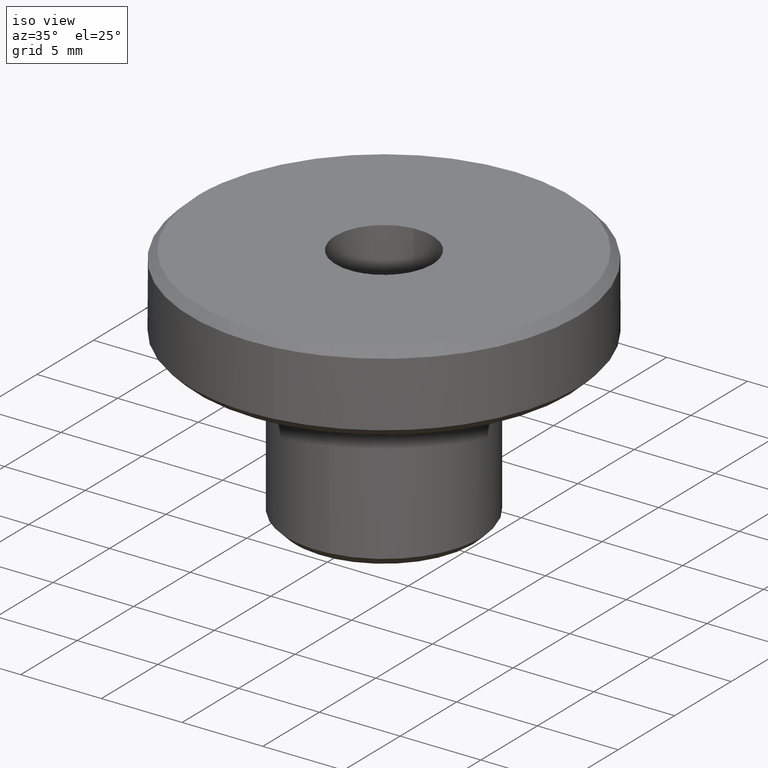
[diagram: clean part render]
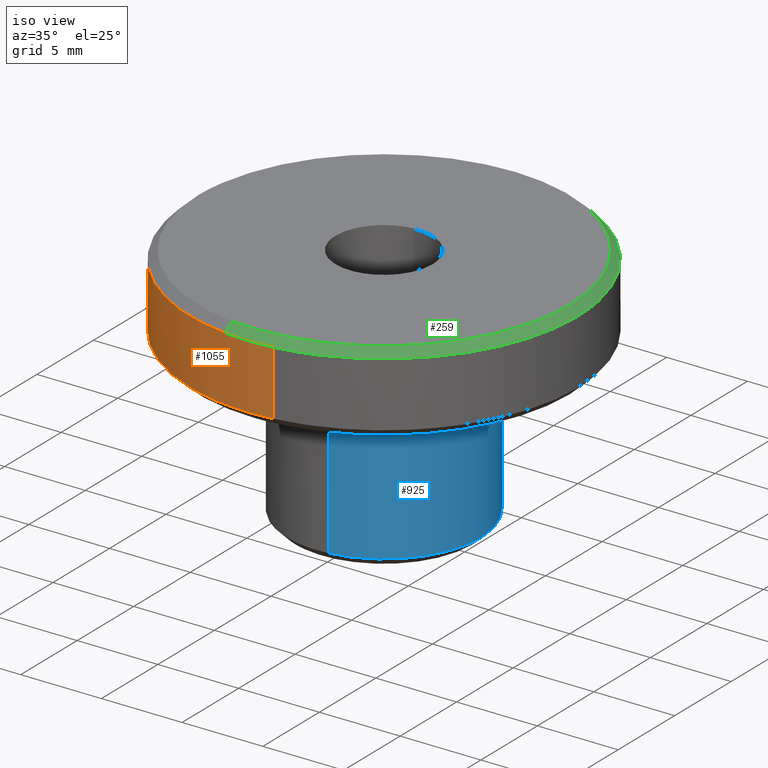
[diagram: same view with three faces highlighted in distinct colors, each labeled with its STEP entity id]
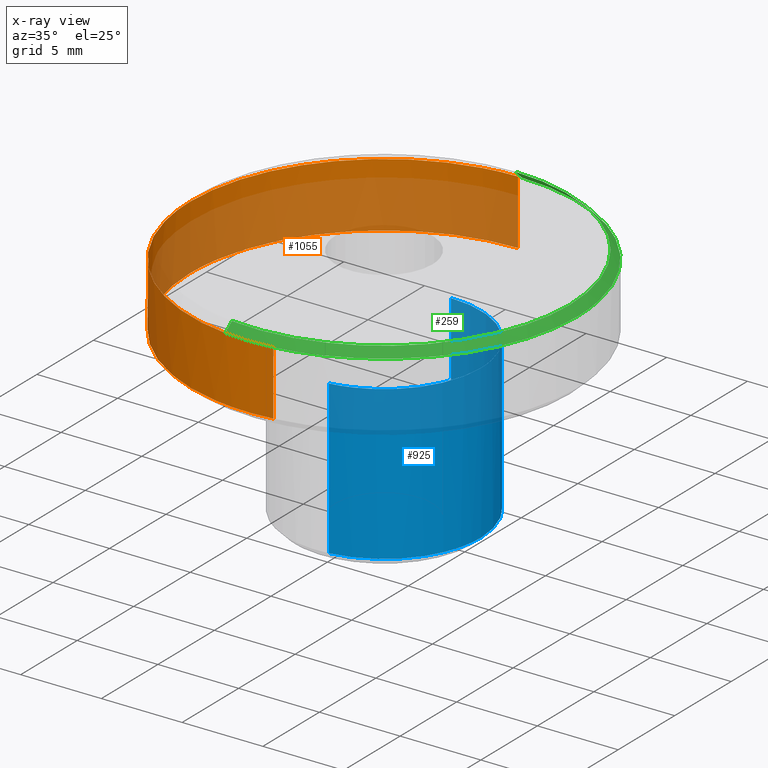
[diagram: x-ray of the same camera — body ghosted, the three highlighted faces saturated]
A machine part, iso view with three faces highlighted in distinct colors.
The next image is the same camera in x-ray (body ghosted, the three faces saturated) — at least one of them is partly hidden behind the body in this view.
Their STEP definitions:

[orange] entity #1055 — the highlighted face is a freeform B-spline surface patch.
#62=CARTESIAN_POINT('',(-1.489536024977577,-11.907194565906501,14.499999999997531));
#63=VERTEX_POINT('',#62);
#64=CARTESIAN_POINT('',(-12.0,0.0,14.500000000000000));
#65=VERTEX_POINT('',#64);
#66=CARTESIAN_POINT('',(-1.489536024977576,-11.907194565906503,14.499999999997526));
#67=CARTESIAN_POINT('',(-12.000000000000002,-10.592383201768106,14.500000000000009));
#68=CARTESIAN_POINT('',(-12.0,0.0,14.500000000000000));
#76=(BOUNDED_CURVE()B_SPLINE_CURVE(2,(#66,#67,#68),.UNSPECIFIED.,.F.,.U.)B_SPLINE_CURVE_WITH_KNOTS((3,3),(0.771473928971248,1.0),.UNSPECIFIED.)CURVE()GEOMETRIC_REPRESENTATION_ITEM()RATIONAL_B_SPLINE_CURVE((0.954005430273657,0.732265053894389,1.0))REPRESENTATION_ITEM(''));
#77=EDGE_CURVE('',#63,#65,#76,.T.);
#125=CARTESIAN_POINT('',(-0.104710458545633,11.999543146295510,14.500000000000030));
#126=VERTEX_POINT('',#125);
#142=CARTESIAN_POINT('',(-12.0,0.0,14.500000000000000));
#143=CARTESIAN_POINT('',(-12.0,11.895742425951299,14.499999999999996));
#144=CARTESIAN_POINT('',(-0.104710458545633,11.999543146295510,14.500000000000037));
#152=(BOUNDED_CURVE()B_SPLINE_CURVE(2,(#142,#143,#144),.UNSPECIFIED.,.F.,.U.)B_SPLINE_CURVE_WITH_KNOTS((3,3),(0.0,0.248460222619991),.UNSPECIFIED.)CURVE()GEOMETRIC_REPRESENTATION_ITEM()RATIONAL_B_SPLINE_CURVE((1.0,0.708910742598895,0.996414298767122))REPRESENTATION_ITEM(''));
#153=EDGE_CURVE('',#65,#126,#152,.T.);
#180=CARTESIAN_POINT('',(1.489536029010390,-11.907194565399520,14.500000000000000));
#181=VERTEX_POINT('',#180);
#182=CARTESIAN_POINT('',(1.489536029010390,-11.907194565399525,14.499999999999998));
#183=CARTESIAN_POINT('',(0.747659134501809,-11.999999999999996,14.500000000000007));
#184=CARTESIAN_POINT('',(0.0,-12.0,14.500000000000000));
#185=CARTESIAN_POINT('',(-0.747659130421445,-11.999999999999996,14.499999999999998));
#186=CARTESIAN_POINT('',(-1.489536024977577,-11.907194565906501,14.499999999997529));
#194=(BOUNDED_CURVE()B_SPLINE_CURVE(2,(#182,#183,#184,#185,#186),.UNSPECIFIED.,.F.,.U.)B_SPLINE_CURVE_WITH_KNOTS((3,2,3),(0.728526070914507,0.750000000000000,0.771473928971248),.UNSPECIFIED.)CURVE()GEOMETRIC_REPRESENTATION_ITEM()RATIONAL_B_SPLINE_CURVE((0.954005430051951,0.974841727158312,1.0,0.974841727292159,0.954005430273658))REPRESENTATION_ITEM(''));
#195=EDGE_CURVE('',#181,#63,#194,.T.);
#337=CARTESIAN_POINT('',(0.104718425980843,-11.999543076770090,10.500000000000060));
#338=VERTEX_POINT('',#337);
#344=CARTESIAN_POINT('',(-12.0,0.0,10.500000000000000));
#345=VERTEX_POINT('',#344);
#346=CARTESIAN_POINT('',(-12.0,0.0,10.500000000000000));
#347=CARTESIAN_POINT('',(-12.0,-12.0,10.500000000000002));
#348=CARTESIAN_POINT('',(0.0,-12.0,10.500000000000000));
#349=CARTESIAN_POINT('',(0.052360209848779,-12.000000000000004,10.500000000000002));
#350=CARTESIAN_POINT('',(0.104718425980843,-11.999543076770081,10.500000000000066));
#358=(BOUNDED_CURVE()B_SPLINE_CURVE(2,(#346,#347,#348,#349,#350),.UNSPECIFIED.,.F.,.U.)B_SPLINE_CURVE_WITH_KNOTS((3,2,3),(0.0,0.250000000000000,0.251539894334998),.UNSPECIFIED.)CURVE()GEOMETRIC_REPRESENTATION_ITEM()RATIONAL_B_SPLINE_CURVE((1.0,0.707106781186548,1.0,0.998195901566360,0.996414028100381))REPRESENTATION_ITEM(''));
#359=EDGE_CURVE('',#345,#338,#358,.T.);
#361=CARTESIAN_POINT('',(-0.104709888522540,11.999543151269251,10.500000000000000));
#362=VERTEX_POINT('',#361);
#363=CARTESIAN_POINT('',(-0.104709888522540,11.999543151269243,10.500000000000002));
#364=CARTESIAN_POINT('',(-12.000000000000002,11.895742991064994,10.500000000000002));
#365=CARTESIAN_POINT('',(-12.0,0.0,10.500000000000000));
#373=(BOUNDED_CURVE()B_SPLINE_CURVE(2,(#363,#364,#365),.UNSPECIFIED.,.F.,.U.)B_SPLINE_CURVE_WITH_KNOTS((3,3),(0.751539769012567,1.0),.UNSPECIFIED.)CURVE()GEOMETRIC_REPRESENTATION_ITEM()RATIONAL_B_SPLINE_CURVE((0.996414318131745,0.708910732795827,1.0))REPRESENTATION_ITEM(''));
#374=EDGE_CURVE('',#362,#345,#373,.T.);
#444=CARTESIAN_POINT('',(1.489527852717329,-11.907195588211000,10.500000000000000));
#445=VERTEX_POINT('',#444);
#459=CARTESIAN_POINT('',(0.104718425980843,-11.999543076770088,10.500000000000062));
#460=CARTESIAN_POINT('',(0.799797775870970,-11.993477211179432,10.499999999999998));
#461=CARTESIAN_POINT('',(1.489527852717330,-11.907195588211003,10.500000000000000));
#469=(BOUNDED_CURVE()B_SPLINE_CURVE(2,(#459,#460,#461),.UNSPECIFIED.,.F.,.U.)B_SPLINE_CURVE_WITH_KNOTS((3,3),(0.251539894334998,0.271473813224281),.UNSPECIFIED.)CURVE()GEOMETRIC_REPRESENTATION_ITEM()RATIONAL_B_SPLINE_CURVE((0.996414028100382,0.973347691446943,0.954005654893896))REPRESENTATION_ITEM(''));
#470=EDGE_CURVE('',#338,#445,#469,.T.);
#1005=CARTESIAN_POINT('',(1.489527852717329,-11.907195588211000,10.500000000000000));
#1006=CARTESIAN_POINT('',(1.489536029010390,-11.907194565399520,14.500000000000000));
#1007=QUASI_UNIFORM_CURVE('',1,(#1005,#1006),.UNSPECIFIED.,.F.,.U.);
#1008=EDGE_CURVE('',#445,#181,#1007,.T.);
#1013=CARTESIAN_POINT('',(-0.104709888522540,11.999543151269251,10.500000000000000));
#1014=CARTESIAN_POINT('',(-0.104710458545633,11.999543146295510,14.500000000000030));
#1015=QUASI_UNIFORM_CURVE('',1,(#1013,#1014),.UNSPECIFIED.,.F.,.U.);
#1016=EDGE_CURVE('',#362,#126,#1015,.T.);
#1023=CARTESIAN_POINT('',(-0.104718425980487,11.999543076770051,10.400000000000000));
#1024=CARTESIAN_POINT('',(-12.104261502750537,11.894824650789566,10.399999999999999));
#1025=CARTESIAN_POINT('',(-11.999543076770051,-0.104718425980487,10.400000000000000));
#1026=CARTESIAN_POINT('',(-11.894824650789566,-12.104261502750537,10.399999999999999));
#1027=CARTESIAN_POINT('',(0.104718425980487,-11.999543076770051,10.400000000000000));
#1028=CARTESIAN_POINT('',(0.799801907498083,-11.993477175123314,10.400000000000002));
#1029=CARTESIAN_POINT('',(1.489536024957952,-11.907194565906458,10.399999999999999));
#1030=CARTESIAN_POINT('',(-0.104718425980487,11.999543076770051,14.602499999999999));
#1031=CARTESIAN_POINT('',(-12.104261502750537,11.894824650789566,14.602499999999997));
#1032=CARTESIAN_POINT('',(-11.999543076770051,-0.104718425980487,14.602499999999999));
#1033=CARTESIAN_POINT('',(-11.894824650789566,-12.104261502750537,14.602499999999997));
#1034=CARTESIAN_POINT('',(0.104718425980487,-11.999543076770051,14.602499999999999));
#1035=CARTESIAN_POINT('',(0.799801907498083,-11.993477175123314,14.602500000000004));
#1036=CARTESIAN_POINT('',(1.489536024957952,-11.907194565906458,14.602500000000010));
#1044=(BOUNDED_SURFACE()B_SPLINE_SURFACE(2,1,((#1023,#1030),(#1024,#1031),(#1025,#1032),(#1026,#1033),(#1027,#1034),(#1028,#1035),(#1029,#1036)),.UNSPECIFIED.,.F.,.F.,.U.)B_SPLINE_SURFACE_WITH_KNOTS((3,2,2,3),(2,2),(0.0,19.882250993908560,39.764501987817113,41.355082067329803),(0.0,4.202500000000007),.UNSPECIFIED.)GEOMETRIC_REPRESENTATION_ITEM()RATIONAL_B_SPLINE_SURFACE(((1.0,1.0),(0.707106781186548,0.707106781186548),(1.0,1.0),(0.707106781186548,0.707106781186548),(1.0,1.0),(0.976568542494924,0.976568542494924),(0.956886118190660,0.956886118190660)))REPRESENTATION_ITEM('')SURFACE());
#1045=ORIENTED_EDGE('',*,*,#195,.T.);
#1046=ORIENTED_EDGE('',*,*,#77,.T.);
#1047=ORIENTED_EDGE('',*,*,#153,.T.);
#1048=ORIENTED_EDGE('',*,*,#1016,.F.);
#1049=ORIENTED_EDGE('',*,*,#374,.T.);
#1050=ORIENTED_EDGE('',*,*,#359,.T.);
#1051=ORIENTED_EDGE('',*,*,#470,.T.);
#1052=ORIENTED_EDGE('',*,*,#1008,.T.);
#1053=EDGE_LOOP('',(#1045,#1046,#1047,#1048,#1049,#1050,#1051,#1052));
#1054=FACE_OUTER_BOUND('',#1053,.T.);
#1055=ADVANCED_FACE('',(#1054),#1044,.T.);

[blue] entity #925 — the highlighted face is a freeform B-spline surface patch.
#500=CARTESIAN_POINT('',(0.744764759161742,-5.953597689926655,0.499999999999930));
#501=VERTEX_POINT('',#500);
#558=CARTESIAN_POINT('',(-0.052357016216925,5.999771557553567,0.499999999999151));
#559=VERTEX_POINT('',#558);
#565=CARTESIAN_POINT('',(6.0,0.0,0.499999999999945));
#566=VERTEX_POINT('',#565);
#567=CARTESIAN_POINT('',(6.0,0.0,0.499999999999945));
#568=CARTESIAN_POINT('',(6.0,6.0,0.499999999999945));
#569=CARTESIAN_POINT('',(0.0,6.0,0.499999999999945));
#570=CARTESIAN_POINT('',(-0.026179006474824,6.000000000000001,0.499999999999945));
#571=CARTESIAN_POINT('',(-0.052357016216925,5.999771557553567,0.499999999999151));
#579=(BOUNDED_CURVE()B_SPLINE_CURVE(2,(#567,#568,#569,#570,#571),.UNSPECIFIED.,.F.,.U.)B_SPLINE_CURVE_WITH_KNOTS((3,2,3),(0.500000000000000,0.750000000000000,0.751539829841568),.UNSPECIFIED.)CURVE()GEOMETRIC_REPRESENTATION_ITEM()RATIONAL_B_SPLINE_CURVE((1.0,0.707106781186548,1.0,0.998195977125113,0.996414177356287))REPRESENTATION_ITEM(''));
#580=EDGE_CURVE('',#566,#559,#579,.T.);
#582=CARTESIAN_POINT('',(0.744764759161742,-5.953597689926655,0.499999999999930));
#583=CARTESIAN_POINT('',(6.000000000000001,-5.296194517539298,0.499999999999945));
#584=CARTESIAN_POINT('',(6.0,0.0,0.499999999999945));
#592=(BOUNDED_CURVE()B_SPLINE_CURVE(2,(#582,#583,#584),.UNSPECIFIED.,.F.,.U.)B_SPLINE_CURVE_WITH_KNOTS((3,3),(0.271473836814868,0.500000000000000),.UNSPECIFIED.)CURVE()GEOMETRIC_REPRESENTATION_ITEM()RATIONAL_B_SPLINE_CURVE((0.954005609113641,0.732264945926474,1.0))REPRESENTATION_ITEM(''));
#593=EDGE_CURVE('',#501,#566,#592,.T.);
#859=CARTESIAN_POINT('',(0.744768012478976,-5.953597282953231,0.262499999999940));
#860=CARTESIAN_POINT('',(6.046396983014668,-5.290387548799326,0.262499999999940));
#861=CARTESIAN_POINT('',(5.999771538385026,0.052359212990243,0.262499999999940));
#862=CARTESIAN_POINT('',(5.947412325394783,6.052130751375269,0.262499999999940));
#863=CARTESIAN_POINT('',(-0.052359212990243,5.999771538385026,0.262499999999940));
#864=CARTESIAN_POINT('',(0.744768012478976,-5.953597282953231,10.243437500000127));
#865=CARTESIAN_POINT('',(6.046396983014668,-5.290387548799326,10.243437500000127));
#866=CARTESIAN_POINT('',(5.999771538385026,0.052359212990243,10.243437500000130));
#867=CARTESIAN_POINT('',(5.947412325394783,6.052130751375269,10.243437500000127));
#868=CARTESIAN_POINT('',(-0.052359212990243,5.999771538385026,10.243437500000130));
#876=(BOUNDED_SURFACE()B_SPLINE_SURFACE(2,1,((#859,#864),(#860,#865),(#861,#866),(#862,#867),(#863,#868)),.UNSPECIFIED.,.F.,.F.,.U.)B_SPLINE_SURFACE_WITH_KNOTS((3,2,3),(2,2),(0.0,9.145835457197935,19.086960954152211),(0.0,9.980937500000188),.UNSPECIFIED.)GEOMETRIC_REPRESENTATION_ITEM()RATIONAL_B_SPLINE_SURFACE(((0.956886118190660,0.956886118190660),(0.730538238691624,0.730538238691624),(1.0,1.0),(0.707106781186548,0.707106781186548),(1.0,1.0)))REPRESENTATION_ITEM('')SURFACE());
#877=ORIENTED_EDGE('',*,*,#593,.T.);
#878=ORIENTED_EDGE('',*,*,#580,.T.);
#879=CARTESIAN_POINT('',(-0.052354501206624,5.999771579500440,10.000000000000121));
#880=VERTEX_POINT('',#879);
#881=CARTESIAN_POINT('',(-0.052357016216925,5.999771557553567,0.499999999999151));
#882=CARTESIAN_POINT('',(-0.052354501206624,5.999771579500440,10.000000000000121));
#883=QUASI_UNIFORM_CURVE('',1,(#881,#882),.UNSPECIFIED.,.F.,.U.);
#884=EDGE_CURVE('',#559,#880,#883,.T.);
#885=ORIENTED_EDGE('',*,*,#884,.T.);
#886=CARTESIAN_POINT('',(6.0,0.0,10.000000000000121));
#887=VERTEX_POINT('',#886);
#888=CARTESIAN_POINT('',(-0.052354501206624,5.999771579500440,10.000000000000121));
#889=CARTESIAN_POINT('',(-0.026177748897856,6.0,10.000000000000121));
#890=CARTESIAN_POINT('',(0.0,6.0,10.000000000000121));
#891=CARTESIAN_POINT('',(6.0,6.0,10.000000000000121));
#892=CARTESIAN_POINT('',(6.0,0.0,10.000000000000121));
#900=(BOUNDED_CURVE()B_SPLINE_CURVE(2,(#888,#889,#890,#891,#892),.UNSPECIFIED.,.F.,.U.)B_SPLINE_CURVE_WITH_KNOTS((3,2,3),(0.248460243994745,0.250000000000000,0.500000000000000),.UNSPECIFIED.)CURVE()GEOMETRIC_REPRESENTATION_ITEM()RATIONAL_B_SPLINE_CURVE((0.996414348234342,0.998196063629734,1.0,0.707106781186548,1.0))REPRESENTATION_ITEM(''));
#901=EDGE_CURVE('',#880,#887,#900,.T.);
#902=ORIENTED_EDGE('',*,*,#901,.T.);
#903=CARTESIAN_POINT('',(0.744762948384162,-5.953597916444146,10.000000000000121));
#904=VERTEX_POINT('',#903);
#905=CARTESIAN_POINT('',(6.0,0.0,10.000000000000121));
#906=CARTESIAN_POINT('',(6.0,-5.296196140923553,10.000000000000119));
#907=CARTESIAN_POINT('',(0.744762948384162,-5.953597916444146,10.000000000000123));
#915=(BOUNDED_CURVE()B_SPLINE_CURVE(2,(#905,#906,#907),.UNSPECIFIED.,.F.,.U.)B_SPLINE_CURVE_WITH_KNOTS((3,3),(0.500000000000000,0.728526214478538),.UNSPECIFIED.)CURVE()GEOMETRIC_REPRESENTATION_ITEM()RATIONAL_B_SPLINE_CURVE((1.0,0.732264885832511,0.954005708654425))REPRESENTATION_ITEM(''));
#916=EDGE_CURVE('',#887,#904,#915,.T.);
#917=ORIENTED_EDGE('',*,*,#916,.T.);
#918=CARTESIAN_POINT('',(0.744764759161742,-5.953597689926655,0.499999999999930));
#919=CARTESIAN_POINT('',(0.744762948384162,-5.953597916444146,10.000000000000121));
#920=QUASI_UNIFORM_CURVE('',1,(#918,#919),.UNSPECIFIED.,.F.,.U.);
#921=EDGE_CURVE('',#501,#904,#920,.T.);
#922=ORIENTED_EDGE('',*,*,#921,.F.);
#923=EDGE_LOOP('',(#877,#878,#885,#902,#917,#922));
#924=FACE_OUTER_BOUND('',#923,.T.);
#925=ADVANCED_FACE('',(#924),#876,.T.);

[green] entity #259 — the highlighted face is a freeform B-spline surface patch.
#62=CARTESIAN_POINT('',(-1.489536024977577,-11.907194565906501,14.499999999997531));
#63=VERTEX_POINT('',#62);
#79=CARTESIAN_POINT('',(-1.427472023938972,-11.411061458993739,14.999999999997380));
#80=VERTEX_POINT('',#79);
#81=CARTESIAN_POINT('',(-1.427472023938972,-11.411061458993739,14.999999999997380));
#82=CARTESIAN_POINT('',(-1.489536024977577,-11.907194565906501,14.499999999997531));
#83=QUASI_UNIFORM_CURVE('',1,(#81,#82),.UNSPECIFIED.,.F.,.U.);
#84=EDGE_CURVE('',#80,#63,#83,.T.);
#101=CARTESIAN_POINT('',(0.100355158253234,11.499562115240780,14.999999999997030));
#102=VERTEX_POINT('',#101);
#118=CARTESIAN_POINT('',(0.104718426017089,11.999543076774710,14.499999999995021));
#119=VERTEX_POINT('',#118);
#120=CARTESIAN_POINT('',(0.100355158253234,11.499562115240780,14.999999999997030));
#121=CARTESIAN_POINT('',(0.104718426017089,11.999543076774710,14.499999999995021));
#122=QUASI_UNIFORM_CURVE('',1,(#120,#121),.UNSPECIFIED.,.F.,.U.);
#123=EDGE_CURVE('',#102,#119,#122,.T.);
#158=CARTESIAN_POINT('',(0.100246076537571,11.487062591199720,15.012499999999999));
#159=CARTESIAN_POINT('',(11.587308667737290,11.386816514662147,15.012500000000008));
#160=CARTESIAN_POINT('',(11.487062591199720,-0.100246076537571,15.012499999999999));
#161=CARTESIAN_POINT('',(11.386816514662147,-11.587308667737290,15.012500000000008));
#162=CARTESIAN_POINT('',(-0.100246076537571,-11.487062591199720,15.012499999999999));
#163=CARTESIAN_POINT('',(-0.765643701032023,-11.481255754102474,15.012500000000005));
#164=CARTESIAN_POINT('',(-1.425920423892046,-11.398658131320925,15.012499999999999));
#165=CARTESIAN_POINT('',(0.104830234716560,12.012355088909310,14.487187499999999));
#166=CARTESIAN_POINT('',(12.117185323625870,11.907524854192753,14.487187500000005));
#167=CARTESIAN_POINT('',(12.012355088909310,-0.104830234716560,14.487187499999999));
#168=CARTESIAN_POINT('',(11.907524854192753,-12.117185323625870,14.487187500000005));
#169=CARTESIAN_POINT('',(-0.104830234716560,-12.012355088909310,14.487187499999999));
#170=CARTESIAN_POINT('',(-0.800655862659735,-12.006282710648829,14.487187499999999));
#171=CARTESIAN_POINT('',(-1.491126414984599,-11.919907976771100,14.487187499999999));
#179=(BOUNDED_SURFACE()B_SPLINE_SURFACE(2,1,((#158,#165),(#159,#166),(#160,#167),(#161,#168),(#162,#169),(#163,#170),(#164,#171)),.UNSPECIFIED.,.F.,.F.,.U.)B_SPLINE_SURFACE_WITH_KNOTS((3,2,2,3),(2,2),(0.0,19.903479438980181,39.806958877960362,41.399237233078779),(0.0,1.0),.UNSPECIFIED.)GEOMETRIC_REPRESENTATION_ITEM()RATIONAL_B_SPLINE_SURFACE(((1.0,1.0),(0.707106781186548,0.707106781186548),(1.0,1.0),(0.707106781186548,0.707106781186548),(1.0,1.0),(0.976568542494924,0.976568542494924),(0.956886118190660,0.956886118190660)))REPRESENTATION_ITEM('')SURFACE());
#180=CARTESIAN_POINT('',(1.489536029010390,-11.907194565399520,14.500000000000000));
#181=VERTEX_POINT('',#180);
#182=CARTESIAN_POINT('',(1.489536029010390,-11.907194565399525,14.499999999999998));
#183=CARTESIAN_POINT('',(0.747659134501809,-11.999999999999996,14.500000000000007));
#184=CARTESIAN_POINT('',(0.0,-12.0,14.500000000000000));
#185=CARTESIAN_POINT('',(-0.747659130421445,-11.999999999999996,14.499999999999998));
#186=CARTESIAN_POINT('',(-1.489536024977577,-11.907194565906501,14.499999999997529));
#194=(BOUNDED_CURVE()B_SPLINE_CURVE(2,(#182,#183,#184,#185,#186),.UNSPECIFIED.,.F.,.U.)B_SPLINE_CURVE_WITH_KNOTS((3,2,3),(0.728526070914507,0.750000000000000,0.771473928971248),.UNSPECIFIED.)CURVE()GEOMETRIC_REPRESENTATION_ITEM()RATIONAL_B_SPLINE_CURVE((0.954005430051951,0.974841727158312,1.0,0.974841727292159,0.954005430273658))REPRESENTATION_ITEM(''));
#195=EDGE_CURVE('',#181,#63,#194,.T.);
#196=ORIENTED_EDGE('',*,*,#195,.F.);
#197=CARTESIAN_POINT('',(12.0,0.0,14.500000000000000));
#198=VERTEX_POINT('',#197);
#199=CARTESIAN_POINT('',(12.0,0.0,14.500000000000000));
#200=CARTESIAN_POINT('',(12.0,-10.592383194536700,14.500000000000004));
#201=CARTESIAN_POINT('',(1.489536029010390,-11.907194565399520,14.499999999999996));
#209=(BOUNDED_CURVE()B_SPLINE_CURVE(2,(#199,#200,#201),.UNSPECIFIED.,.F.,.U.)B_SPLINE_CURVE_WITH_KNOTS((3,3),(0.500000000000000,0.728526070914508),.UNSPECIFIED.)CURVE()GEOMETRIC_REPRESENTATION_ITEM()RATIONAL_B_SPLINE_CURVE((1.0,0.732265054028234,0.954005430051953))REPRESENTATION_ITEM(''));
#210=EDGE_CURVE('',#198,#181,#209,.T.);
#211=ORIENTED_EDGE('',*,*,#210,.F.);
#212=CARTESIAN_POINT('',(0.104718426017089,11.999543076774710,14.499999999995024));
#213=CARTESIAN_POINT('',(12.0,11.895734527067249,14.500000000000004));
#214=CARTESIAN_POINT('',(12.0,0.0,14.500000000000000));
#222=(BOUNDED_CURVE()B_SPLINE_CURVE(2,(#212,#213,#214),.UNSPECIFIED.,.F.,.U.)B_SPLINE_CURVE_WITH_KNOTS((3,3),(0.251539894336060,0.500000000000000),.UNSPECIFIED.)CURVE()GEOMETRIC_REPRESENTATION_ITEM()RATIONAL_B_SPLINE_CURVE((0.996414028097922,0.708910879621433,1.0))REPRESENTATION_ITEM(''));
#223=EDGE_CURVE('',#119,#198,#222,.T.);
#224=ORIENTED_EDGE('',*,*,#223,.F.);
#225=ORIENTED_EDGE('',*,*,#123,.F.);
#226=CARTESIAN_POINT('',(11.500000000000000,0.0,15.0));
#227=VERTEX_POINT('',#226);
#228=CARTESIAN_POINT('',(11.500000000000000,0.0,15.0));
#229=CARTESIAN_POINT('',(11.499999999999998,11.400078921798803,15.000000000000002));
#230=CARTESIAN_POINT('',(0.100355158253234,11.499562115240776,14.999999999997025));
#238=(BOUNDED_CURVE()B_SPLINE_CURVE(2,(#228,#229,#230),.UNSPECIFIED.,.F.,.U.)B_SPLINE_CURVE_WITH_KNOTS((3,3),(0.0,0.248460105664342),.UNSPECIFIED.)CURVE()GEOMETRIC_REPRESENTATION_ITEM()RATIONAL_B_SPLINE_CURVE((1.0,0.708910879620962,0.996414028098852))REPRESENTATION_ITEM(''));
#239=EDGE_CURVE('',#227,#102,#238,.T.);
#240=ORIENTED_EDGE('',*,*,#239,.F.);
#241=CARTESIAN_POINT('',(-1.427472023938972,-11.411061458993746,14.999999999997378));
#242=CARTESIAN_POINT('',(-0.716506666656032,-11.500000000000002,15.0));
#243=CARTESIAN_POINT('',(0.0,-11.500000000000000,15.0));
#244=CARTESIAN_POINT('',(11.500000000000000,-11.500000000000000,14.999999999999995));
#245=CARTESIAN_POINT('',(11.500000000000000,0.0,15.0));
#253=(BOUNDED_CURVE()B_SPLINE_CURVE(2,(#241,#242,#243,#244,#245),.UNSPECIFIED.,.F.,.U.)B_SPLINE_CURVE_WITH_KNOTS((3,2,3),(0.728526071028690,0.750000000000000,1.0),.UNSPECIFIED.)CURVE()GEOMETRIC_REPRESENTATION_ITEM()RATIONAL_B_SPLINE_CURVE((0.954005430273537,0.974841727292086,1.0,0.707106781186548,1.0))REPRESENTATION_ITEM(''));
#254=EDGE_CURVE('',#80,#227,#253,.T.);
#255=ORIENTED_EDGE('',*,*,#254,.F.);
#256=ORIENTED_EDGE('',*,*,#84,.T.);
#257=EDGE_LOOP('',(#196,#211,#224,#225,#240,#255,#256));
#258=FACE_OUTER_BOUND('',#257,.T.);
#259=ADVANCED_FACE('',(#258),#179,.T.);